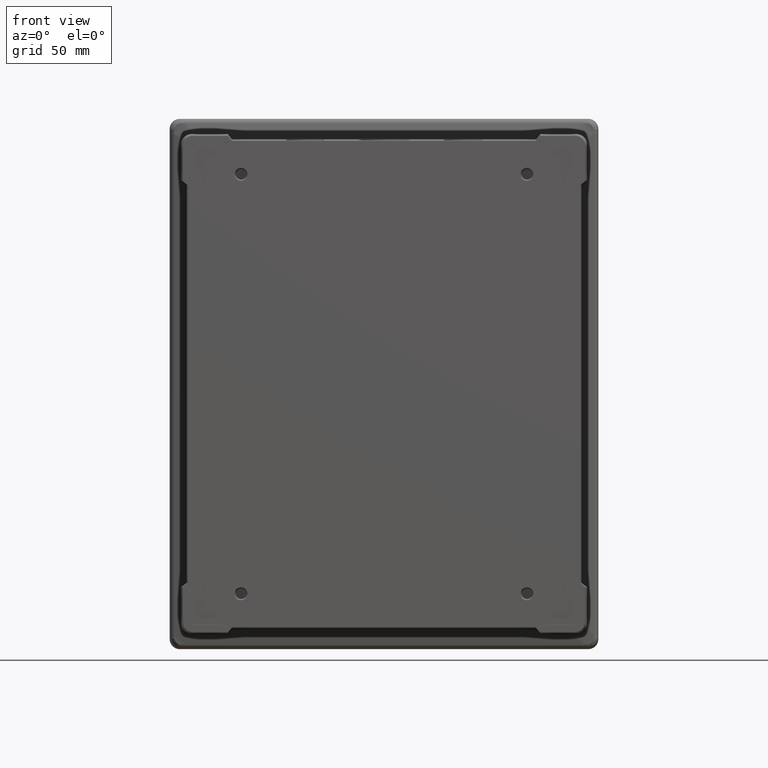
[diagram: clean part render]
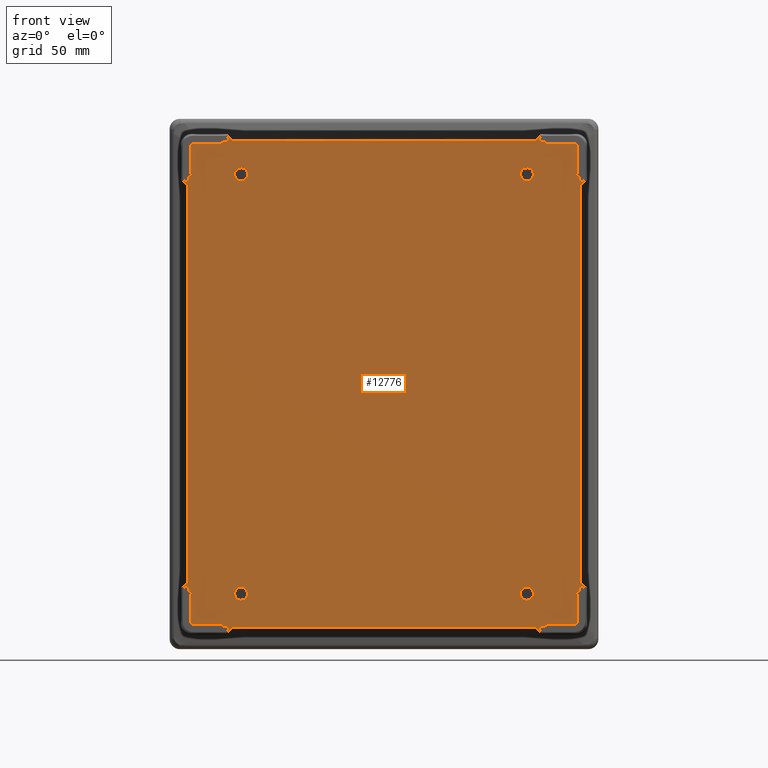
[diagram: same view with one face highlighted and labeled with its STEP entity id]
A machine part, front view. The second image highlights one B-rep face of the part: STEP entity #12776.
In plain terms, the highlighted planar face has unit normal (0, 1, 0).
Its self-contained STEP definition (entity closure, byte-faithful):
#3278=DIRECTION('',(-1.E0,0.E0,0.E0));
#3279=VECTOR('',#3278,1.615619962037E2);
#3280=CARTESIAN_POINT('',(8.078099810185E1,-1.385E2,-1.293685209341E2));
#3281=LINE('',#3280,#3279);
#3358=DIRECTION('',(-6.901728112689E-1,5.520015138790E-13,-7.236445885828E-1));
#3359=VECTOR('',#3358,2.419957753090E0);
#3360=CARTESIAN_POINT('',(1.038245189946E2,-1.385E2,-1.097558703072E2));
#3361=LINE('',#3360,#3359);
#3362=DIRECTION('',(9.945218996098E-1,4.222277497225E-13,-1.045284229127E-1));
#3363=VECTOR('',#3362,8.750780185293E-1);
#3364=CARTESIAN_POINT('',(1.021543299490E2,-1.385E2,-1.115070596398E2));
#3365=LINE('',#3364,#3363);
#3366=CARTESIAN_POINT('',(1.030246142022E2,-1.385000000001E2,
-1.255247093452E2));
#3367=CARTESIAN_POINT('',(1.030246142020E2,-1.385000000001E2,
-1.257940516198E2));
#3368=CARTESIAN_POINT('',(1.029428612381E2,-1.385E2,-1.263046402998E2));
#3369=CARTESIAN_POINT('',(1.025793364692E2,-1.385E2,-1.270211454352E2));
#3370=CARTESIAN_POINT('',(1.020147950868E2,-1.385E2,-1.275836893841E2));
#3371=CARTESIAN_POINT('',(1.013001412766E2,-1.385E2,-1.279439150986E2));
#3372=CARTESIAN_POINT('',(1.007922459157E2,-1.385000000001E2,
-1.280246142234E2));
#3373=CARTESIAN_POINT('',(1.005247093495E2,-1.385000000001E2,
-1.280246142234E2));
#3375=DIRECTION('',(-6.901728249238E-1,-5.419782342077E-13,-7.236445755595E-1));
#3376=VECTOR('',#3375,1.363457789538E0);
#3377=CARTESIAN_POINT('',(8.657890152211E1,-1.385E2,-1.278378601170E2));
#3378=LINE('',#3377,#3376);
#3379=DIRECTION('',(1.045284575815E-1,-4.422008794622E-9,-9.945218959659E-1));
#3380=VECTOR('',#3379,3.208947299638E0);
#3381=CARTESIAN_POINT('',(8.266057047096E1,-1.385E2,-1.288245189504E2));
#3382=LINE('',#3381,#3380);
#3383=DIRECTION('',(-6.416979908651E-1,4.110709410896E-9,7.669574228858E-1));
#3384=VECTOR('',#3383,3.451777490869E0);
#3385=CARTESIAN_POINT('',(8.299599678265E1,-1.385000000142E2,
-1.320158873029E2));
#3386=LINE('',#3385,#3384);
#3387=DIRECTION('',(-6.416979908651E-1,-4.110709410897E-9,-7.669574228858E-1));
#3388=VECTOR('',#3387,3.451777490869E0);
#3389=CARTESIAN_POINT('',(-8.078099810185E1,-1.385E2,-1.293685209341E2));
#3390=LINE('',#3389,#3388);
#3391=DIRECTION('',(1.045284575815E-1,4.422008794622E-9,9.945218959659E-1));
#3392=VECTOR('',#3391,3.208947299639E0);
#3393=CARTESIAN_POINT('',(-8.299599678265E1,-1.385000000142E2,
-1.320158873029E2));
#3394=LINE('',#3393,#3392);
#3395=DIRECTION('',(-6.901728249238E-1,5.419782342077E-13,7.236445755595E-1));
#3396=VECTOR('',#3395,1.363457789538E0);
#3397=CARTESIAN_POINT('',(-8.563788000784E1,-1.385E2,-1.288245189504E2));
#3398=LINE('',#3397,#3396);
#3399=CARTESIAN_POINT('',(-1.005247093495E2,-1.385000000001E2,
-1.280246142234E2));
#3400=CARTESIAN_POINT('',(-1.007940515318E2,-1.385000000001E2,
-1.280246142234E2));
#3401=CARTESIAN_POINT('',(-1.013046401031E2,-1.385E2,-1.279428613174E2));
#3402=CARTESIAN_POINT('',(-1.020211454068E2,-1.385E2,-1.275793364503E2));
#3403=CARTESIAN_POINT('',(-1.025836893684E2,-1.385E2,-1.270147951429E2));
#3404=CARTESIAN_POINT('',(-1.029439149669E2,-1.385E2,-1.263001416277E2));
#3405=CARTESIAN_POINT('',(-1.030246142021E2,-1.385000000001E2,
-1.257922460717E2));
#3406=CARTESIAN_POINT('',(-1.030246142022E2,-1.385000000001E2,
-1.255247093450E2));
#3408=DIRECTION('',(9.945218996097E-1,-4.222277497225E-13,1.045284229127E-1));
#3409=VECTOR('',#3408,8.750780185293E-1);
#3410=CARTESIAN_POINT('',(-1.030246142023E2,-1.385E2,-1.115985301650E2));
#3411=LINE('',#3410,#3409);
#3412=DIRECTION('',(-6.901728112689E-1,-5.520015138790E-13,7.236445885828E-1));
#3413=VECTOR('',#3412,2.419957753090E0);
#3414=CARTESIAN_POINT('',(-1.021543299490E2,-1.385E2,-1.115070596398E2));
#3415=LINE('',#3414,#3413);
#3416=DIRECTION('',(-9.945218959312E-1,-2.574275092980E-9,-1.045284579121E-1));
#3417=VECTOR('',#3416,3.208947258611E0);
#3418=CARTESIAN_POINT('',(-1.038245189949E2,-1.385E2,-1.076605704262E2));
#3419=LINE('',#3418,#3417);
#3420=DIRECTION('',(7.669613035104E-1,2.403249380287E-9,6.416933527143E-1));
#3421=VECTOR('',#3420,3.437132552553E0);
#3422=CARTESIAN_POINT('',(-1.070158873064E2,-1.385000000083E2,
-1.079959967347E2));
#3423=LINE('',#3422,#3421);
#3424=DIRECTION('',(-7.669613035104E-1,-2.403241111270E-9,6.416933527143E-1));
#3425=VECTOR('',#3424,3.437132552553E0);
#3426=CARTESIAN_POINT('',(-1.043797396436E2,-1.385E2,1.057904116233E2));
#3427=LINE('',#3426,#3425);
#3428=DIRECTION('',(9.945218959312E-1,2.57428395E-9,-1.045284579121E-1));
#3429=VECTOR('',#3428,3.208947258611E0);
#3430=CARTESIAN_POINT('',(-1.070158873064E2,-1.385000000083E2,
1.079959967347E2));
#3431=LINE('',#3430,#3429);
#3432=DIRECTION('',(6.901728112689E-1,5.520015138790E-13,7.236445885828E-1));
#3433=VECTOR('',#3432,2.419957753090E0);
#3434=CARTESIAN_POINT('',(-1.038245189946E2,-1.385E2,1.097558703072E2));
#3435=LINE('',#3434,#3433);
#3436=DIRECTION('',(-9.945218996098E-1,4.222277497225E-13,1.045284229127E-1));
#3437=VECTOR('',#3436,8.750780185293E-1);
#3438=CARTESIAN_POINT('',(-1.021543299490E2,-1.385E2,1.115070596398E2));
#3439=LINE('',#3438,#3437);
#3440=CARTESIAN_POINT('',(-1.030246142024E2,-1.385000000002E2,
1.255247093447E2));
#3441=CARTESIAN_POINT('',(-1.030246142024E2,-1.385000000002E2,
1.257940516194E2));
#3442=CARTESIAN_POINT('',(-1.029428612380E2,-1.384999999999E2,1.263046403E2));
#3443=CARTESIAN_POINT('',(-1.025793364692E2,-1.385E2,1.270211454352E2));
#3444=CARTESIAN_POINT('',(-1.020147950869E2,-1.385E2,1.275836893842E2));
#3445=CARTESIAN_POINT('',(-1.013001412763E2,-1.384999999999E2,
1.279439150986E2));
#3446=CARTESIAN_POINT('',(-1.007922459161E2,-1.385000000002E2,
1.280246142235E2));
#3447=CARTESIAN_POINT('',(-1.005247093499E2,-1.385000000002E2,
1.280246142236E2));
#3449=DIRECTION('',(6.901728249239E-1,-5.419782342077E-13,7.236445755595E-1));
#3450=VECTOR('',#3449,1.363457789538E0);
#3451=CARTESIAN_POINT('',(-8.657890152211E1,-1.385E2,1.278378601170E2));
#3452=LINE('',#3451,#3450);
#3453=DIRECTION('',(-1.045284575815E-1,-4.422008794622E-9,9.945218959659E-1));
#3454=VECTOR('',#3453,3.208947299638E0);
#3455=CARTESIAN_POINT('',(-8.266057047096E1,-1.385E2,1.288245189504E2));
#3456=LINE('',#3455,#3454);
#3457=DIRECTION('',(6.416979908651E-1,4.110709410896E-9,-7.669574228858E-1));
#3458=VECTOR('',#3457,3.451777490869E0);
#3459=CARTESIAN_POINT('',(-8.299599678265E1,-1.385000000142E2,
1.320158873029E2));
#3460=LINE('',#3459,#3458);
#3461=DIRECTION('',(6.416979908652E-1,-4.110709410897E-9,7.669574228858E-1));
#3462=VECTOR('',#3461,3.451777490869E0);
#3463=CARTESIAN_POINT('',(8.078099810185E1,-1.385E2,1.293685209341E2));
#3464=LINE('',#3463,#3462);
#3465=DIRECTION('',(-1.045284575815E-1,4.422008794622E-9,-9.945218959659E-1));
#3466=VECTOR('',#3465,3.208947299639E0);
#3467=CARTESIAN_POINT('',(8.299599678265E1,-1.385000000142E2,1.320158873029E2));
#3468=LINE('',#3467,#3466);
#3469=DIRECTION('',(6.901728249238E-1,5.419782342077E-13,-7.236445755595E-1));
#3470=VECTOR('',#3469,1.363457789538E0);
#3471=CARTESIAN_POINT('',(8.563788000784E1,-1.385E2,1.288245189504E2));
#3472=LINE('',#3471,#3470);
#3473=CARTESIAN_POINT('',(1.005247093492E2,-1.385000000002E2,1.280246142236E2));
#3474=CARTESIAN_POINT('',(1.007940515315E2,-1.385000000002E2,1.280246142237E2));
#3475=CARTESIAN_POINT('',(1.013046401032E2,-1.384999999999E2,1.279428613173E2));
#3476=CARTESIAN_POINT('',(1.020211454068E2,-1.385E2,1.275793364503E2));
#3477=CARTESIAN_POINT('',(1.025836893685E2,-1.385E2,1.270147951429E2));
#3478=CARTESIAN_POINT('',(1.029439149667E2,-1.384999999999E2,1.263001416279E2));
#3479=CARTESIAN_POINT('',(1.030246142024E2,-1.385000000002E2,1.257922460713E2));
#3480=CARTESIAN_POINT('',(1.030246142024E2,-1.385000000002E2,1.255247093446E2));
#3482=DIRECTION('',(-9.945218996098E-1,-4.222277497225E-13,-1.045284229127E-1));
#3483=VECTOR('',#3482,8.750780185293E-1);
#3484=CARTESIAN_POINT('',(1.030246142023E2,-1.385E2,1.115985301650E2));
#3485=LINE('',#3484,#3483);
#3486=DIRECTION('',(6.901728112689E-1,-5.520015138790E-13,-7.236445885828E-1));
#3487=VECTOR('',#3486,2.419957753090E0);
#3488=CARTESIAN_POINT('',(1.021543299490E2,-1.385E2,1.115070596398E2));
#3489=LINE('',#3488,#3487);
#3490=DIRECTION('',(9.945218959312E-1,-2.574275092980E-9,1.045284579121E-1));
#3491=VECTOR('',#3490,3.208947258611E0);
#3492=CARTESIAN_POINT('',(1.038245189949E2,-1.385E2,1.076605704262E2));
#3493=LINE('',#3492,#3491);
#3494=DIRECTION('',(-7.669613035104E-1,2.403241111270E-9,-6.416933527143E-1));
#3495=VECTOR('',#3494,3.437132552553E0);
#3496=CARTESIAN_POINT('',(1.070158873064E2,-1.385000000083E2,1.079959967347E2));
#3497=LINE('',#3496,#3495);
#3498=DIRECTION('',(7.669613035104E-1,-2.403241111270E-9,-6.416933527143E-1));
#3499=VECTOR('',#3498,3.437132552553E0);
#3500=CARTESIAN_POINT('',(1.043797396436E2,-1.385E2,-1.057904116233E2));
#3501=LINE('',#3500,#3499);
#3502=DIRECTION('',(-9.945218959312E-1,2.574275092980E-9,1.045284579121E-1));
#3503=VECTOR('',#3502,3.208947258611E0);
#3504=CARTESIAN_POINT('',(1.070158873064E2,-1.385000000083E2,
-1.079959967347E2));
#3505=LINE('',#3504,#3503);
#3506=CARTESIAN_POINT('',(-7.6E1,-1.385E2,-1.115E2));
#3507=DIRECTION('',(0.E0,-1.E0,0.E0));
#3508=DIRECTION('',(-1.150966780820E-8,0.E0,-1.E0));
#3509=AXIS2_PLACEMENT_3D('',#3506,#3507,#3508);
#3511=CARTESIAN_POINT('',(-7.6E1,-1.385E2,-1.115E2));
#3512=DIRECTION('',(0.E0,-1.E0,0.E0));
#3513=DIRECTION('',(-1.150966780820E-8,0.E0,1.E0));
#3514=AXIS2_PLACEMENT_3D('',#3511,#3512,#3513);
#3516=CARTESIAN_POINT('',(7.6E1,-1.385E2,-1.115E2));
#3517=DIRECTION('',(0.E0,-1.E0,0.E0));
#3518=DIRECTION('',(1.150965957002E-8,0.E0,1.E0));
#3519=AXIS2_PLACEMENT_3D('',#3516,#3517,#3518);
#3521=CARTESIAN_POINT('',(7.6E1,-1.385E2,-1.115E2));
#3522=DIRECTION('',(0.E0,-1.E0,0.E0));
#3523=DIRECTION('',(1.150965957002E-8,0.E0,-1.E0));
#3524=AXIS2_PLACEMENT_3D('',#3521,#3522,#3523);
#3526=CARTESIAN_POINT('',(-7.6E1,-1.385E2,1.115E2));
#3527=DIRECTION('',(0.E0,-1.E0,0.E0));
#3528=DIRECTION('',(-1.150966780820E-8,0.E0,-1.E0));
#3529=AXIS2_PLACEMENT_3D('',#3526,#3527,#3528);
#3531=CARTESIAN_POINT('',(-7.6E1,-1.385E2,1.115E2));
#3532=DIRECTION('',(0.E0,-1.E0,0.E0));
#3533=DIRECTION('',(-1.150966780820E-8,0.E0,1.E0));
#3534=AXIS2_PLACEMENT_3D('',#3531,#3532,#3533);
#3536=CARTESIAN_POINT('',(7.6E1,-1.385E2,1.115E2));
#3537=DIRECTION('',(0.E0,-1.E0,0.E0));
#3538=DIRECTION('',(1.150965957002E-8,0.E0,1.E0));
#3539=AXIS2_PLACEMENT_3D('',#3536,#3537,#3538);
#3541=CARTESIAN_POINT('',(7.6E1,-1.385E2,1.115E2));
#3542=DIRECTION('',(0.E0,-1.E0,0.E0));
#3543=DIRECTION('',(1.150965957002E-8,0.E0,-1.E0));
#3544=AXIS2_PLACEMENT_3D('',#3541,#3542,#3543);
#3603=DIRECTION('',(1.242034062815E-10,8.409994200241E-13,1.E0));
#3604=VECTOR('',#3603,2.095299880985E0);
#3605=CARTESIAN_POINT('',(1.038245189946E2,-1.385E2,-1.097558703072E2));
#3606=LINE('',#3605,#3604);
#3730=DIRECTION('',(-6.163468197068E-12,1.667401826823E-11,-1.E0));
#3731=VECTOR('',#3730,1.392617917955E1);
#3732=CARTESIAN_POINT('',(1.030246142024E2,-1.385000000002E2,1.255247093446E2));
#3733=LINE('',#3732,#3731);
#3742=DIRECTION('',(1.E0,-1.661075088109E-11,1.643727578282E-11));
#3743=VECTOR('',#3742,1.392617917817E1);
#3744=CARTESIAN_POINT('',(8.659853017107E1,-1.385E2,1.280246142234E2));
#3745=LINE('',#3744,#3743);
#3754=DIRECTION('',(1.045284707973E-1,-7.113645874912E-12,9.945218945769E-1));
#3755=VECTOR('',#3754,1.877828003697E-1);
#3756=CARTESIAN_POINT('',(8.657890152211E1,-1.385E2,1.278378601170E2));
#3757=LINE('',#3756,#3755);
#3774=DIRECTION('',(-1.E0,2.481987297721E-13,-2.386526247809E-12));
#3775=VECTOR('',#3774,2.977309536874E0);
#3776=CARTESIAN_POINT('',(8.563788000784E1,-1.385E2,1.288245189504E2));
#3777=LINE('',#3776,#3775);
#3825=DIRECTION('',(1.E0,0.E0,0.E0));
#3826=VECTOR('',#3825,1.615619962037E2);
#3827=CARTESIAN_POINT('',(-8.078099810185E1,-1.385E2,1.293685209341E2));
#3828=LINE('',#3827,#3826);
#3993=DIRECTION('',(1.045284707973E-1,7.113645874912E-12,-9.945218945769E-1));
#3994=VECTOR('',#3993,1.877828003696E-1);
#3995=CARTESIAN_POINT('',(-8.659853017107E1,-1.385E2,1.280246142234E2));
#3996=LINE('',#3995,#3994);
#4005=DIRECTION('',(1.E0,1.618216534338E-11,-1.643115313148E-11));
#4006=VECTOR('',#4005,1.392617917885E1);
#4007=CARTESIAN_POINT('',(-1.005247093499E2,-1.385000000002E2,
1.280246142236E2));
#4008=LINE('',#4007,#4006);
#4017=DIRECTION('',(-6.163468197001E-12,-1.658013762664E-11,1.E0));
#4018=VECTOR('',#4017,1.392617917970E1);
#4019=CARTESIAN_POINT('',(-1.030246142023E2,-1.385E2,1.115985301650E2));
#4020=LINE('',#4019,#4018);
#4045=DIRECTION('',(-1.242034062815E-10,8.409994200241E-13,-1.E0));
#4046=VECTOR('',#4045,2.095299880985E0);
#4047=CARTESIAN_POINT('',(-1.038245189946E2,-1.385E2,1.097558703072E2));
#4048=LINE('',#4047,#4046);
#4107=DIRECTION('',(0.E0,0.E0,1.E0));
#4108=VECTOR('',#4107,2.115808232466E2);
#4109=CARTESIAN_POINT('',(-1.043797396436E2,-1.385E2,-1.057904116233E2));
#4110=LINE('',#4109,#4108);
#4139=DIRECTION('',(1.242034062815E-10,-8.409994200241E-13,-1.E0));
#4140=VECTOR('',#4139,2.095299880985E0);
#4141=CARTESIAN_POINT('',(-1.038245189949E2,-1.385E2,-1.076605704262E2));
#4142=LINE('',#4141,#4140);
#4388=DIRECTION('',(-1.E0,-2.481987297721E-13,2.396072352800E-12));
#4389=VECTOR('',#4388,2.977309536874E0);
#4390=CARTESIAN_POINT('',(-8.266057047096E1,-1.385E2,1.288245189504E2));
#4391=LINE('',#4390,#4389);
#4542=DIRECTION('',(-1.242034062815E-10,-8.409994200241E-13,1.E0));
#4543=VECTOR('',#4542,2.095299880985E0);
#4544=CARTESIAN_POINT('',(1.038245189949E2,-1.385E2,1.076605704262E2));
#4545=LINE('',#4544,#4543);
#4566=DIRECTION('',(0.E0,0.E0,-1.E0));
#4567=VECTOR('',#4566,2.115808232466E2);
#4568=CARTESIAN_POINT('',(1.043797396436E2,-1.385E2,1.057904116233E2));
#4569=LINE('',#4568,#4567);
#4612=DIRECTION('',(1.E0,-2.481987297721E-13,-2.396072352800E-12));
#4613=VECTOR('',#4612,2.977309536874E0);
#4614=CARTESIAN_POINT('',(8.266057047096E1,-1.385E2,-1.288245189504E2));
#4615=LINE('',#4614,#4613);
#4628=DIRECTION('',(-1.045284707973E-1,7.113645874912E-12,9.945218945769E-1));
#4629=VECTOR('',#4628,1.877828003697E-1);
#4630=CARTESIAN_POINT('',(8.659853017107E1,-1.385E2,-1.280246142234E2));
#4631=LINE('',#4630,#4629);
#4640=DIRECTION('',(-1.E0,4.585865245019E-12,1.289838377771E-12));
#4641=VECTOR('',#4640,1.392617917840E1);
#4642=CARTESIAN_POINT('',(1.005247093495E2,-1.385000000001E2,
-1.280246142234E2));
#4643=LINE('',#4642,#4641);
#4652=DIRECTION('',(-8.980907880802E-12,-4.412390146186E-12,-1.E0));
#4653=VECTOR('',#4652,1.392617918015E1);
#4654=CARTESIAN_POINT('',(1.030246142023E2,-1.385E2,-1.115985301650E2));
#4655=LINE('',#4654,#4653);
#4672=DIRECTION('',(1.E0,2.481987297721E-13,2.386526247809E-12));
#4673=VECTOR('',#4672,2.977309536874E0);
#4674=CARTESIAN_POINT('',(-8.563788000784E1,-1.385E2,-1.288245189504E2));
#4675=LINE('',#4674,#4673);
#4684=DIRECTION('',(-1.045284707973E-1,-7.113645874912E-12,-9.945218945769E-1));
#4685=VECTOR('',#4684,1.877828003697E-1);
#4686=CARTESIAN_POINT('',(-8.657890152211E1,-1.385E2,-1.278378601170E2));
#4687=LINE('',#4686,#4685);
#4688=DIRECTION('',(-1.E0,-4.585865245019E-12,-1.289838377771E-12));
#4689=VECTOR('',#4688,1.392617917840E1);
#4690=CARTESIAN_POINT('',(-8.659853017107E1,-1.385E2,-1.280246142234E2));
#4691=LINE('',#4690,#4689);
#4716=DIRECTION('',(-8.979887439144E-12,4.506270787643E-12,1.E0));
#4717=VECTOR('',#4716,1.392617918E1);
#4718=CARTESIAN_POINT('',(-1.030246142022E2,-1.385000000001E2,
-1.255247093450E2));
#4719=LINE('',#4718,#4717);
#5441=CARTESIAN_POINT('',(7.600000001324E1,-1.385E2,1.149500000015E2));
#5443=VERTEX_POINT('',#5441);
#5447=CARTESIAN_POINT('',(7.600000001418E1,-1.385E2,1.080500000353E2));
#5448=VERTEX_POINT('',#5447);
#5457=CARTESIAN_POINT('',(-7.600000001324E1,-1.385E2,1.149500000015E2));
#5459=VERTEX_POINT('',#5457);
#5463=CARTESIAN_POINT('',(-7.600000001229E1,-1.385E2,1.080500000353E2));
#5464=VERTEX_POINT('',#5463);
#5473=CARTESIAN_POINT('',(-7.600000001324E1,-1.385E2,-1.149500000015E2));
#5475=VERTEX_POINT('',#5473);
#5479=CARTESIAN_POINT('',(-7.600000001418E1,-1.385E2,-1.080500000353E2));
#5480=VERTEX_POINT('',#5479);
#5489=CARTESIAN_POINT('',(7.600000001324E1,-1.385E2,-1.149500000015E2));
#5491=VERTEX_POINT('',#5489);
#5495=CARTESIAN_POINT('',(7.600000001229E1,-1.385E2,-1.080500000353E2));
#5496=VERTEX_POINT('',#5495);
#5707=CARTESIAN_POINT('',(1.038245189946E2,-1.385E2,-1.097558703072E2));
#5708=CARTESIAN_POINT('',(1.021543299490E2,-1.385E2,-1.115070596398E2));
#5709=VERTEX_POINT('',#5707);
#5710=VERTEX_POINT('',#5708);
#5711=CARTESIAN_POINT('',(1.038245189949E2,-1.385E2,-1.076605704262E2));
#5712=VERTEX_POINT('',#5711);
#5713=CARTESIAN_POINT('',(1.070158873064E2,-1.385000000083E2,
-1.079959967347E2));
#5714=VERTEX_POINT('',#5713);
#5715=CARTESIAN_POINT('',(1.043797396436E2,-1.385E2,-1.057904116233E2));
#5716=VERTEX_POINT('',#5715);
#5717=CARTESIAN_POINT('',(1.043797396436E2,-1.385E2,1.057904116233E2));
#5718=VERTEX_POINT('',#5717);
#5719=CARTESIAN_POINT('',(1.070158873064E2,-1.385000000083E2,1.079959967347E2));
#5720=VERTEX_POINT('',#5719);
#5721=CARTESIAN_POINT('',(1.038245189949E2,-1.385E2,1.076605704262E2));
#5722=VERTEX_POINT('',#5721);
#5723=CARTESIAN_POINT('',(1.038245189946E2,-1.385E2,1.097558703072E2));
#5724=VERTEX_POINT('',#5723);
#5725=CARTESIAN_POINT('',(1.021543299490E2,-1.385E2,1.115070596398E2));
#5726=VERTEX_POINT('',#5725);
#5727=CARTESIAN_POINT('',(1.030246142023E2,-1.385E2,1.115985301650E2));
#5728=VERTEX_POINT('',#5727);
#5729=CARTESIAN_POINT('',(1.030246142024E2,-1.385000000002E2,1.255247093446E2));
#5730=VERTEX_POINT('',#5729);
#5731=VERTEX_POINT('',#3473);
#5732=CARTESIAN_POINT('',(8.659853017107E1,-1.385E2,1.280246142234E2));
#5733=VERTEX_POINT('',#5732);
#5734=CARTESIAN_POINT('',(8.657890152211E1,-1.385E2,1.278378601170E2));
#5735=VERTEX_POINT('',#5734);
#5736=CARTESIAN_POINT('',(8.563788000784E1,-1.385E2,1.288245189504E2));
#5737=VERTEX_POINT('',#5736);
#5738=CARTESIAN_POINT('',(8.266057047096E1,-1.385E2,1.288245189504E2));
#5739=VERTEX_POINT('',#5738);
#5740=CARTESIAN_POINT('',(8.299599678265E1,-1.385000000142E2,1.320158873029E2));
#5741=VERTEX_POINT('',#5740);
#5742=CARTESIAN_POINT('',(8.078099810185E1,-1.385E2,1.293685209341E2));
#5743=VERTEX_POINT('',#5742);
#5744=CARTESIAN_POINT('',(-8.078099810185E1,-1.385E2,1.293685209341E2));
#5745=VERTEX_POINT('',#5744);
#5746=CARTESIAN_POINT('',(-8.299599678265E1,-1.385000000142E2,
1.320158873029E2));
#5747=VERTEX_POINT('',#5746);
#5748=CARTESIAN_POINT('',(-8.266057047096E1,-1.385E2,1.288245189504E2));
#5749=VERTEX_POINT('',#5748);
#5750=CARTESIAN_POINT('',(-8.563788000784E1,-1.385E2,1.288245189504E2));
#5751=VERTEX_POINT('',#5750);
#5752=CARTESIAN_POINT('',(-8.657890152211E1,-1.385E2,1.278378601170E2));
#5753=VERTEX_POINT('',#5752);
#5754=CARTESIAN_POINT('',(-8.659853017107E1,-1.385E2,1.280246142234E2));
#5755=VERTEX_POINT('',#5754);
#5756=CARTESIAN_POINT('',(-1.005247093499E2,-1.385000000002E2,
1.280246142236E2));
#5757=VERTEX_POINT('',#5756);
#5758=VERTEX_POINT('',#3440);
#5759=CARTESIAN_POINT('',(-1.030246142023E2,-1.385E2,1.115985301650E2));
#5760=VERTEX_POINT('',#5759);
#5761=CARTESIAN_POINT('',(-1.021543299490E2,-1.385E2,1.115070596398E2));
#5762=VERTEX_POINT('',#5761);
#5763=CARTESIAN_POINT('',(-1.038245189946E2,-1.385E2,1.097558703072E2));
#5764=VERTEX_POINT('',#5763);
#5765=CARTESIAN_POINT('',(-1.038245189949E2,-1.385E2,1.076605704262E2));
#5766=VERTEX_POINT('',#5765);
#5767=CARTESIAN_POINT('',(-1.070158873064E2,-1.385000000083E2,
1.079959967347E2));
#5768=VERTEX_POINT('',#5767);
#5769=CARTESIAN_POINT('',(-1.043797396436E2,-1.385E2,1.057904116233E2));
#5770=VERTEX_POINT('',#5769);
#5771=CARTESIAN_POINT('',(-1.043797396436E2,-1.385E2,-1.057904116233E2));
#5772=VERTEX_POINT('',#5771);
#5773=CARTESIAN_POINT('',(-1.070158873064E2,-1.385000000083E2,
-1.079959967347E2));
#5774=VERTEX_POINT('',#5773);
#5775=CARTESIAN_POINT('',(-1.038245189949E2,-1.385E2,-1.076605704262E2));
#5776=VERTEX_POINT('',#5775);
#5777=CARTESIAN_POINT('',(-1.038245189946E2,-1.385E2,-1.097558703072E2));
#5778=VERTEX_POINT('',#5777);
#5779=CARTESIAN_POINT('',(-1.021543299490E2,-1.385E2,-1.115070596398E2));
#5780=VERTEX_POINT('',#5779);
#5781=CARTESIAN_POINT('',(-1.030246142023E2,-1.385E2,-1.115985301650E2));
#5782=VERTEX_POINT('',#5781);
#5783=CARTESIAN_POINT('',(-1.030246142022E2,-1.385000000001E2,
-1.255247093450E2));
#5784=VERTEX_POINT('',#5783);
#5785=VERTEX_POINT('',#3399);
#5786=CARTESIAN_POINT('',(-8.659853017107E1,-1.385E2,-1.280246142234E2));
#5787=VERTEX_POINT('',#5786);
#5788=CARTESIAN_POINT('',(-8.657890152211E1,-1.385E2,-1.278378601170E2));
#5789=VERTEX_POINT('',#5788);
#5790=CARTESIAN_POINT('',(-8.563788000784E1,-1.385E2,-1.288245189504E2));
#5791=VERTEX_POINT('',#5790);
#5792=CARTESIAN_POINT('',(-8.266057047096E1,-1.385E2,-1.288245189504E2));
#5793=VERTEX_POINT('',#5792);
#5794=CARTESIAN_POINT('',(-8.299599678265E1,-1.385000000142E2,
-1.320158873029E2));
#5795=VERTEX_POINT('',#5794);
#5796=CARTESIAN_POINT('',(-8.078099810185E1,-1.385E2,-1.293685209341E2));
#5797=VERTEX_POINT('',#5796);
#5798=CARTESIAN_POINT('',(8.078099810185E1,-1.385E2,-1.293685209341E2));
#5799=VERTEX_POINT('',#5798);
#5800=CARTESIAN_POINT('',(8.299599678265E1,-1.385000000142E2,
-1.320158873029E2));
#5801=VERTEX_POINT('',#5800);
#5802=CARTESIAN_POINT('',(8.266057047096E1,-1.385E2,-1.288245189504E2));
#5803=VERTEX_POINT('',#5802);
#5804=CARTESIAN_POINT('',(8.563788000784E1,-1.385E2,-1.288245189504E2));
#5805=VERTEX_POINT('',#5804);
#5806=CARTESIAN_POINT('',(8.657890152211E1,-1.385E2,-1.278378601170E2));
#5807=VERTEX_POINT('',#5806);
#5808=CARTESIAN_POINT('',(8.659853017107E1,-1.385E2,-1.280246142234E2));
#5809=VERTEX_POINT('',#5808);
#5810=CARTESIAN_POINT('',(1.005247093495E2,-1.385000000001E2,
-1.280246142234E2));
#5811=VERTEX_POINT('',#5810);
#5812=VERTEX_POINT('',#3366);
#5813=CARTESIAN_POINT('',(1.030246142023E2,-1.385E2,-1.115985301650E2));
#5814=VERTEX_POINT('',#5813);
#12637=CARTESIAN_POINT('',(0.E0,-1.385E2,0.E0));
#12638=DIRECTION('',(0.E0,1.E0,0.E0));
#12639=DIRECTION('',(0.E0,0.E0,1.E0));
#12640=AXIS2_PLACEMENT_3D('',#12637,#12638,#12639);
#12641=PLANE('',#12640);
#12643=ORIENTED_EDGE('',*,*,#12642,.T.);
#12645=ORIENTED_EDGE('',*,*,#12644,.T.);
#12647=ORIENTED_EDGE('',*,*,#12646,.T.);
#12649=ORIENTED_EDGE('',*,*,#12648,.T.);
#12651=ORIENTED_EDGE('',*,*,#12650,.T.);
#12653=ORIENTED_EDGE('',*,*,#12652,.T.);
#12655=ORIENTED_EDGE('',*,*,#12654,.T.);
#12657=ORIENTED_EDGE('',*,*,#12656,.F.);
#12659=ORIENTED_EDGE('',*,*,#12658,.T.);
#12661=ORIENTED_EDGE('',*,*,#12660,.T.);
#12662=ORIENTED_EDGE('',*,*,#12533,.T.);
#12663=ORIENTED_EDGE('',*,*,#12549,.T.);
#12665=ORIENTED_EDGE('',*,*,#12664,.T.);
#12667=ORIENTED_EDGE('',*,*,#12666,.F.);
#12669=ORIENTED_EDGE('',*,*,#12668,.T.);
#12671=ORIENTED_EDGE('',*,*,#12670,.T.);
#12673=ORIENTED_EDGE('',*,*,#12672,.T.);
#12675=ORIENTED_EDGE('',*,*,#12674,.T.);
#12677=ORIENTED_EDGE('',*,*,#12676,.T.);
#12678=ORIENTED_EDGE('',*,*,#12628,.T.);
#12679=ORIENTED_EDGE('',*,*,#12618,.T.);
#12681=ORIENTED_EDGE('',*,*,#12680,.F.);
#12683=ORIENTED_EDGE('',*,*,#12682,.T.);
#12685=ORIENTED_EDGE('',*,*,#12684,.T.);
#12687=ORIENTED_EDGE('',*,*,#12686,.T.);
#12689=ORIENTED_EDGE('',*,*,#12688,.T.);
#12691=ORIENTED_EDGE('',*,*,#12690,.T.);
#12693=ORIENTED_EDGE('',*,*,#12692,.F.);
#12695=ORIENTED_EDGE('',*,*,#12694,.T.);
#12697=ORIENTED_EDGE('',*,*,#12696,.T.);
#12699=ORIENTED_EDGE('',*,*,#12698,.T.);
#12701=ORIENTED_EDGE('',*,*,#12700,.T.);
#12703=ORIENTED_EDGE('',*,*,#12702,.T.);
#12705=ORIENTED_EDGE('',*,*,#12704,.T.);
#12707=ORIENTED_EDGE('',*,*,#12706,.T.);
#12709=ORIENTED_EDGE('',*,*,#12708,.F.);
#12711=ORIENTED_EDGE('',*,*,#12710,.T.);
#12713=ORIENTED_EDGE('',*,*,#12712,.T.);
#12715=ORIENTED_EDGE('',*,*,#12714,.T.);
#12717=ORIENTED_EDGE('',*,*,#12716,.T.);
#12719=ORIENTED_EDGE('',*,*,#12718,.T.);
#12721=ORIENTED_EDGE('',*,*,#12720,.F.);
#12723=ORIENTED_EDGE('',*,*,#12722,.T.);
#12725=ORIENTED_EDGE('',*,*,#12724,.T.);
#12727=ORIENTED_EDGE('',*,*,#12726,.T.);
#12729=ORIENTED_EDGE('',*,*,#12728,.T.);
#12731=ORIENTED_EDGE('',*,*,#12730,.T.);
#12733=ORIENTED_EDGE('',*,*,#12732,.T.);
#12735=ORIENTED_EDGE('',*,*,#12734,.T.);
#12737=ORIENTED_EDGE('',*,*,#12736,.F.);
#12739=ORIENTED_EDGE('',*,*,#12738,.T.);
#12741=ORIENTED_EDGE('',*,*,#12740,.T.);
#12743=ORIENTED_EDGE('',*,*,#12742,.T.);
#12745=ORIENTED_EDGE('',*,*,#12744,.T.);
#12747=ORIENTED_EDGE('',*,*,#12746,.T.);
#12749=ORIENTED_EDGE('',*,*,#12748,.F.);
#12750=EDGE_LOOP('',(#12643,#12645,#12647,#12649,#12651,#12653,#12655,#12657,
#12659,#12661,#12662,#12663,#12665,#12667,#12669,#12671,#12673,#12675,#12677,
#12678,#12679,#12681,#12683,#12685,#12687,#12689,#12691,#12693,#12695,#12697,
#12699,#12701,#12703,#12705,#12707,#12709,#12711,#12713,#12715,#12717,#12719,
#12721,#12723,#12725,#12727,#12729,#12731,#12733,#12735,#12737,#12739,#12741,
#12743,#12745,#12747,#12749));
#12751=FACE_OUTER_BOUND('',#12750,.F.);
#12753=ORIENTED_EDGE('',*,*,#12752,.T.);
#12755=ORIENTED_EDGE('',*,*,#12754,.T.);
#12756=EDGE_LOOP('',(#12753,#12755));
#12757=FACE_BOUND('',#12756,.F.);
#12759=ORIENTED_EDGE('',*,*,#12758,.T.);
#12761=ORIENTED_EDGE('',*,*,#12760,.T.);
#12762=EDGE_LOOP('',(#12759,#12761));
#12763=FACE_BOUND('',#12762,.F.);
#12765=ORIENTED_EDGE('',*,*,#12764,.T.);
#12767=ORIENTED_EDGE('',*,*,#12766,.T.);
#12768=EDGE_LOOP('',(#12765,#12767));
#12769=FACE_BOUND('',#12768,.F.);
#12771=ORIENTED_EDGE('',*,*,#12770,.T.);
#12773=ORIENTED_EDGE('',*,*,#12772,.T.);
#12774=EDGE_LOOP('',(#12771,#12773));
#12775=FACE_BOUND('',#12774,.F.);
#12776=ADVANCED_FACE('',(#12751,#12757,#12763,#12769,#12775),#12641,.F.);
#3374=B_SPLINE_CURVE_WITH_KNOTS('',3,(#3366,#3367,#3368,#3369,#3370,#3371,#3372,
#3373),.UNSPECIFIED.,.F.,.F.,(4,1,1,1,1,4),(0.E0,2.E-1,4.E-1,6.E-1,8.E-1,1.E0),
.UNSPECIFIED.);
#3407=B_SPLINE_CURVE_WITH_KNOTS('',3,(#3399,#3400,#3401,#3402,#3403,#3404,#3405,
#3406),.UNSPECIFIED.,.F.,.F.,(4,1,1,1,1,4),(0.E0,2.E-1,4.E-1,6.E-1,8.E-1,1.E0),
.UNSPECIFIED.);
#3448=B_SPLINE_CURVE_WITH_KNOTS('',3,(#3440,#3441,#3442,#3443,#3444,#3445,#3446,
#3447),.UNSPECIFIED.,.F.,.F.,(4,1,1,1,1,4),(0.E0,2.E-1,4.E-1,6.E-1,8.E-1,1.E0),
.UNSPECIFIED.);
#3481=B_SPLINE_CURVE_WITH_KNOTS('',3,(#3473,#3474,#3475,#3476,#3477,#3478,#3479,
#3480),.UNSPECIFIED.,.F.,.F.,(4,1,1,1,1,4),(0.E0,2.E-1,4.E-1,6.E-1,8.E-1,1.E0),
.UNSPECIFIED.);
#3510=CIRCLE('',#3509,3.45E0);
#3515=CIRCLE('',#3514,3.45E0);
#3520=CIRCLE('',#3519,3.45E0);
#3525=CIRCLE('',#3524,3.45E0);
#3530=CIRCLE('',#3529,3.45E0);
#3535=CIRCLE('',#3534,3.45E0);
#3540=CIRCLE('',#3539,3.45E0);
#3545=CIRCLE('',#3544,3.45E0);
#12533=EDGE_CURVE('',#5799,#5797,#3281,.T.);
#12549=EDGE_CURVE('',#5797,#5795,#3390,.T.);
#12618=EDGE_CURVE('',#5780,#5778,#3415,.T.);
#12628=EDGE_CURVE('',#5782,#5780,#3411,.T.);
#12642=EDGE_CURVE('',#5709,#5710,#3361,.T.);
#12644=EDGE_CURVE('',#5710,#5814,#3365,.T.);
#12646=EDGE_CURVE('',#5814,#5812,#4655,.T.);
#12648=EDGE_CURVE('',#5812,#5811,#3374,.T.);
#12650=EDGE_CURVE('',#5811,#5809,#4643,.T.);
#12652=EDGE_CURVE('',#5809,#5807,#4631,.T.);
#12654=EDGE_CURVE('',#5807,#5805,#3378,.T.);
#12656=EDGE_CURVE('',#5803,#5805,#4615,.T.);
#12658=EDGE_CURVE('',#5803,#5801,#3382,.T.);
#12660=EDGE_CURVE('',#5801,#5799,#3386,.T.);
#12664=EDGE_CURVE('',#5795,#5793,#3394,.T.);
#12666=EDGE_CURVE('',#5791,#5793,#4675,.T.);
#12668=EDGE_CURVE('',#5791,#5789,#3398,.T.);
#12670=EDGE_CURVE('',#5789,#5787,#4687,.T.);
#12672=EDGE_CURVE('',#5787,#5785,#4691,.T.);
#12674=EDGE_CURVE('',#5785,#5784,#3407,.T.);
#12676=EDGE_CURVE('',#5784,#5782,#4719,.T.);
#12680=EDGE_CURVE('',#5776,#5778,#4142,.T.);
#12682=EDGE_CURVE('',#5776,#5774,#3419,.T.);
#12684=EDGE_CURVE('',#5774,#5772,#3423,.T.);
#12686=EDGE_CURVE('',#5772,#5770,#4110,.T.);
#12688=EDGE_CURVE('',#5770,#5768,#3427,.T.);
#12690=EDGE_CURVE('',#5768,#5766,#3431,.T.);
#12692=EDGE_CURVE('',#5764,#5766,#4048,.T.);
#12694=EDGE_CURVE('',#5764,#5762,#3435,.T.);
#12696=EDGE_CURVE('',#5762,#5760,#3439,.T.);
#12698=EDGE_CURVE('',#5760,#5758,#4020,.T.);
#12700=EDGE_CURVE('',#5758,#5757,#3448,.T.);
#12702=EDGE_CURVE('',#5757,#5755,#4008,.T.);
#12704=EDGE_CURVE('',#5755,#5753,#3996,.T.);
#12706=EDGE_CURVE('',#5753,#5751,#3452,.T.);
#12708=EDGE_CURVE('',#5749,#5751,#4391,.T.);
#12710=EDGE_CURVE('',#5749,#5747,#3456,.T.);
#12712=EDGE_CURVE('',#5747,#5745,#3460,.T.);
#12714=EDGE_CURVE('',#5745,#5743,#3828,.T.);
#12716=EDGE_CURVE('',#5743,#5741,#3464,.T.);
#12718=EDGE_CURVE('',#5741,#5739,#3468,.T.);
#12720=EDGE_CURVE('',#5737,#5739,#3777,.T.);
#12722=EDGE_CURVE('',#5737,#5735,#3472,.T.);
#12724=EDGE_CURVE('',#5735,#5733,#3757,.T.);
#12726=EDGE_CURVE('',#5733,#5731,#3745,.T.);
#12728=EDGE_CURVE('',#5731,#5730,#3481,.T.);
#12730=EDGE_CURVE('',#5730,#5728,#3733,.T.);
#12732=EDGE_CURVE('',#5728,#5726,#3485,.T.);
#12734=EDGE_CURVE('',#5726,#5724,#3489,.T.);
#12736=EDGE_CURVE('',#5722,#5724,#4545,.T.);
#12738=EDGE_CURVE('',#5722,#5720,#3493,.T.);
#12740=EDGE_CURVE('',#5720,#5718,#3497,.T.);
#12742=EDGE_CURVE('',#5718,#5716,#4569,.T.);
#12744=EDGE_CURVE('',#5716,#5714,#3501,.T.);
#12746=EDGE_CURVE('',#5714,#5712,#3505,.T.);
#12748=EDGE_CURVE('',#5709,#5712,#3606,.T.);
#12752=EDGE_CURVE('',#5475,#5480,#3510,.T.);
#12754=EDGE_CURVE('',#5480,#5475,#3515,.T.);
#12758=EDGE_CURVE('',#5496,#5491,#3520,.T.);
#12760=EDGE_CURVE('',#5491,#5496,#3525,.T.);
#12764=EDGE_CURVE('',#5464,#5459,#3530,.T.);
#12766=EDGE_CURVE('',#5459,#5464,#3535,.T.);
#12770=EDGE_CURVE('',#5443,#5448,#3540,.T.);
#12772=EDGE_CURVE('',#5448,#5443,#3545,.T.);